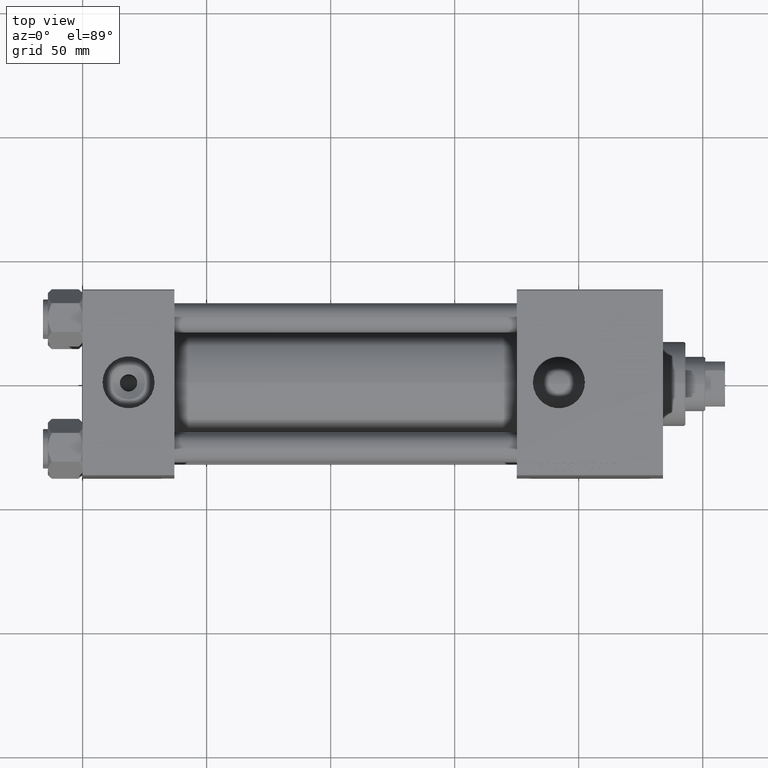
[diagram: clean part render]
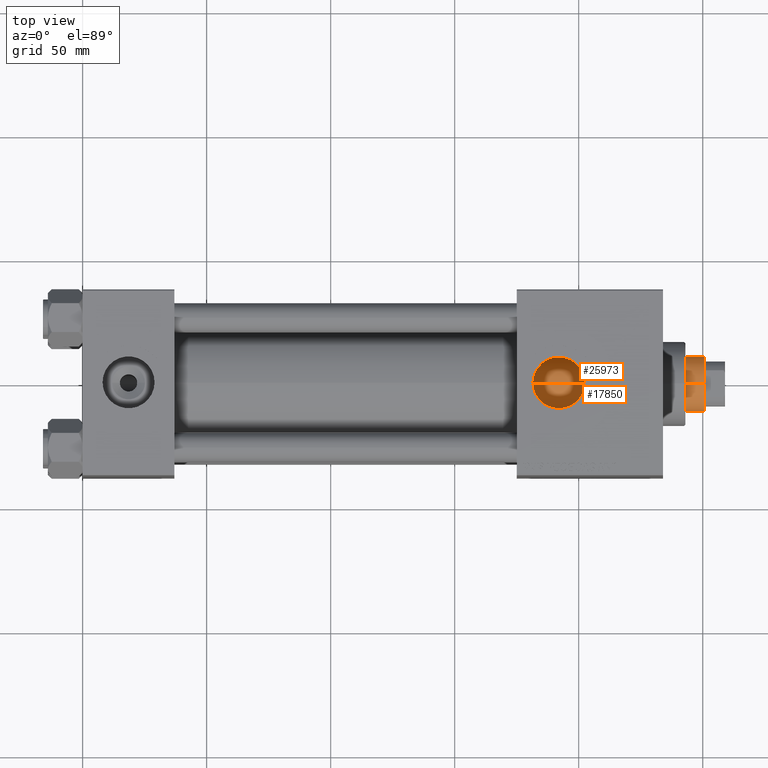
[diagram: same view with one multi-face feature highlighted, each face labeled with its STEP entity id]
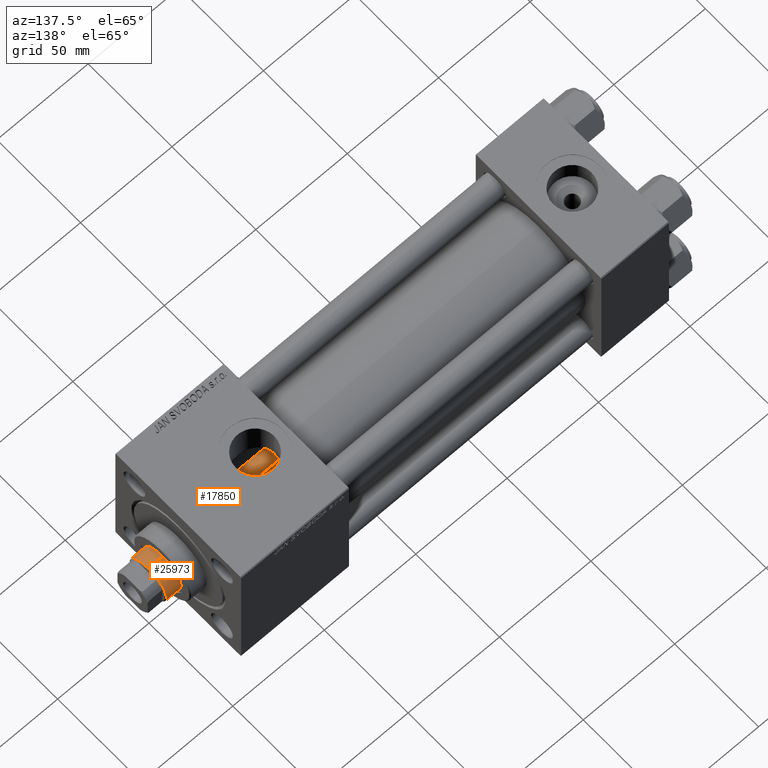
[diagram: same view with one multi-face feature highlighted, each face labeled with its STEP entity id]
A machine part, top view. The highlighted faces form ONE feature: a constant-radius fillet chain: 2 tangent blend faces with common blend radius 11 mm. The faces share edges in the B-rep.
A second angle (auxiliary view) of the same feature is appended — it is thin or edge-on in the first view.
Their STEP definitions:
[1] entity #25973 (Cylinder):
#1259 = EDGE_LOOP ( 'NONE', ( #2989, #18706, #50017, #37603 ) ) ;
#2932 = DIRECTION ( 'NONE',  ( -1.000000000000000000, 0.000000000000000000, 0.000000000000000000 ) ) ;
#2989 = ORIENTED_EDGE ( 'NONE', *, *, #39881, .F. ) ;
#4681 = DIRECTION ( 'NONE',  ( -0.000000000000000000, -0.000000000000000000, -1.000000000000000000 ) ) ;
#5983 = CIRCLE ( 'NONE', #40035, 11.00000000000000000 ) ;
#6081 = DIRECTION ( 'NONE',  ( -0.000000000000000000, -0.000000000000000000, -1.000000000000000000 ) ) ;
#6391 = AXIS2_PLACEMENT_3D ( 'NONE', #20448, #39996, #30671 ) ;
#6990 = DIRECTION ( 'NONE',  ( -0.000000000000000000, -0.000000000000000000, -1.000000000000000000 ) ) ;
#7796 = VECTOR ( 'NONE', #4681, 1000.000000000000000 ) ;
#10594 = CARTESIAN_POINT ( 'NONE',  ( 11.00000000000000000, 1.347111479062088405E-15, 38.00000000000000000 ) ) ;
#14615 = FACE_OUTER_BOUND ( 'NONE', #1259, .T. ) ;
#17978 = CARTESIAN_POINT ( 'NONE',  ( 11.00000000000000000, 1.347111479062088405E-15, 213.5000000000000000 ) ) ;
#18706 = ORIENTED_EDGE ( 'NONE', *, *, #33338, .T. ) ;
#19681 = VERTEX_POINT ( 'NONE', #49026 ) ;
#20448 = CARTESIAN_POINT ( 'NONE',  ( 0.000000000000000000, 0.000000000000000000, 38.00000000000000000 ) ) ;
#20676 = EDGE_CURVE ( 'NONE', #41712, #33630, #24218, .T. ) ;
#21552 = LINE ( 'NONE', #40856, #26435 ) ;
#23948 = LINE ( 'NONE', #47316, #7796 ) ;
#24218 = CIRCLE ( 'NONE', #6391, 11.00000000000000000 ) ;
#25827 = VERTEX_POINT ( 'NONE', #17978 ) ;
#25973 = ADVANCED_FACE ( 'NONE', ( #14615 ), #49393, .T. ) ;
#26435 = VECTOR ( 'NONE', #6081, 1000.000000000000000 ) ;
#30671 = DIRECTION ( 'NONE',  ( 1.000000000000000000, 0.000000000000000000, 0.000000000000000000 ) ) ;
#33338 = EDGE_CURVE ( 'NONE', #25827, #19681, #5983, .T. ) ;
#33630 = VERTEX_POINT ( 'NONE', #10594 ) ;
#37603 = ORIENTED_EDGE ( 'NONE', *, *, #20676, .T. ) ;
#37811 = DIRECTION ( 'NONE',  ( 1.000000000000000000, 0.000000000000000000, 0.000000000000000000 ) ) ;
#39576 = EDGE_CURVE ( 'NONE', #19681, #41712, #23948, .T. ) ;
#39881 = EDGE_CURVE ( 'NONE', #25827, #33630, #21552, .T. ) ;
#39996 = DIRECTION ( 'NONE',  ( 0.000000000000000000, 0.000000000000000000, 1.000000000000000000 ) ) ;
#40035 = AXIS2_PLACEMENT_3D ( 'NONE', #49498, #42864, #37811 ) ;
#40856 = CARTESIAN_POINT ( 'NONE',  ( 11.00000000000000000, 1.347111479062088405E-15, 214.0000000000000000 ) ) ;
#41712 = VERTEX_POINT ( 'NONE', #44784 ) ;
#42008 = CARTESIAN_POINT ( 'NONE',  ( 0.000000000000000000, 0.000000000000000000, 214.0000000000000000 ) ) ;
#42864 = DIRECTION ( 'NONE',  ( 0.000000000000000000, 0.000000000000000000, -1.000000000000000000 ) ) ;
#44784 = CARTESIAN_POINT ( 'NONE',  ( -11.00000000000000000, 0.000000000000000000, 38.00000000000000000 ) ) ;
#46234 = AXIS2_PLACEMENT_3D ( 'NONE', #42008, #6990, #2932 ) ;
#47316 = CARTESIAN_POINT ( 'NONE',  ( -11.00000000000000000, 0.000000000000000000, 214.0000000000000000 ) ) ;
#49026 = CARTESIAN_POINT ( 'NONE',  ( -11.00000000000000000, 0.000000000000000000, 213.5000000000000000 ) ) ;
#49393 = CYLINDRICAL_SURFACE ( 'NONE', #46234, 11.00000000000000000 ) ;
#49498 = CARTESIAN_POINT ( 'NONE',  ( 0.000000000000000000, 0.000000000000000000, 213.5000000000000000 ) ) ;
#50017 = ORIENTED_EDGE ( 'NONE', *, *, #39576, .T. ) ;
[2] entity #17850 (Cylinder):
#1271 = ORIENTED_EDGE ( 'NONE', *, *, #39250, .T. ) ;
#4681 = DIRECTION ( 'NONE',  ( -0.000000000000000000, -0.000000000000000000, -1.000000000000000000 ) ) ;
#6081 = DIRECTION ( 'NONE',  ( -0.000000000000000000, -0.000000000000000000, -1.000000000000000000 ) ) ;
#7796 = VECTOR ( 'NONE', #4681, 1000.000000000000000 ) ;
#8546 = DIRECTION ( 'NONE',  ( 0.000000000000000000, 0.000000000000000000, -1.000000000000000000 ) ) ;
#10594 = CARTESIAN_POINT ( 'NONE',  ( 11.00000000000000000, 1.347111479062088405E-15, 38.00000000000000000 ) ) ;
#12663 = EDGE_LOOP ( 'NONE', ( #13104, #29401, #1271, #16645 ) ) ;
#13104 = ORIENTED_EDGE ( 'NONE', *, *, #48056, .T. ) ;
#15413 = DIRECTION ( 'NONE',  ( 0.000000000000000000, 0.000000000000000000, 1.000000000000000000 ) ) ;
#15647 = FACE_OUTER_BOUND ( 'NONE', #12663, .T. ) ;
#16645 = ORIENTED_EDGE ( 'NONE', *, *, #39576, .F. ) ;
#17797 = AXIS2_PLACEMENT_3D ( 'NONE', #41811, #31114, #46617 ) ;
#17850 = ADVANCED_FACE ( 'NONE', ( #15647 ), #34428, .T. ) ;
#17978 = CARTESIAN_POINT ( 'NONE',  ( 11.00000000000000000, 1.347111479062088405E-15, 213.5000000000000000 ) ) ;
#19681 = VERTEX_POINT ( 'NONE', #49026 ) ;
#21552 = LINE ( 'NONE', #40856, #26435 ) ;
#22462 = CIRCLE ( 'NONE', #41025, 11.00000000000000000 ) ;
#23948 = LINE ( 'NONE', #47316, #7796 ) ;
#24009 = DIRECTION ( 'NONE',  ( 1.000000000000000000, 0.000000000000000000, 0.000000000000000000 ) ) ;
#25827 = VERTEX_POINT ( 'NONE', #17978 ) ;
#26435 = VECTOR ( 'NONE', #6081, 1000.000000000000000 ) ;
#29401 = ORIENTED_EDGE ( 'NONE', *, *, #39881, .T. ) ;
#30883 = DIRECTION ( 'NONE',  ( 1.000000000000000000, 0.000000000000000000, 0.000000000000000000 ) ) ;
#31114 = DIRECTION ( 'NONE',  ( -0.000000000000000000, -0.000000000000000000, -1.000000000000000000 ) ) ;
#33630 = VERTEX_POINT ( 'NONE', #10594 ) ;
#34428 = CYLINDRICAL_SURFACE ( 'NONE', #17797, 11.00000000000000000 ) ;
#34773 = AXIS2_PLACEMENT_3D ( 'NONE', #42823, #8546, #24009 ) ;
#34809 = CIRCLE ( 'NONE', #34773, 11.00000000000000000 ) ;
#39250 = EDGE_CURVE ( 'NONE', #33630, #41712, #22462, .T. ) ;
#39576 = EDGE_CURVE ( 'NONE', #19681, #41712, #23948, .T. ) ;
#39881 = EDGE_CURVE ( 'NONE', #25827, #33630, #21552, .T. ) ;
#40856 = CARTESIAN_POINT ( 'NONE',  ( 11.00000000000000000, 1.347111479062088405E-15, 214.0000000000000000 ) ) ;
#41025 = AXIS2_PLACEMENT_3D ( 'NONE', #49939, #15413, #30883 ) ;
#41712 = VERTEX_POINT ( 'NONE', #44784 ) ;
#41811 = CARTESIAN_POINT ( 'NONE',  ( 0.000000000000000000, 0.000000000000000000, 214.0000000000000000 ) ) ;
#42823 = CARTESIAN_POINT ( 'NONE',  ( 0.000000000000000000, 0.000000000000000000, 213.5000000000000000 ) ) ;
#44784 = CARTESIAN_POINT ( 'NONE',  ( -11.00000000000000000, 0.000000000000000000, 38.00000000000000000 ) ) ;
#46617 = DIRECTION ( 'NONE',  ( -1.000000000000000000, 0.000000000000000000, 0.000000000000000000 ) ) ;
#47316 = CARTESIAN_POINT ( 'NONE',  ( -11.00000000000000000, 0.000000000000000000, 214.0000000000000000 ) ) ;
#48056 = EDGE_CURVE ( 'NONE', #19681, #25827, #34809, .T. ) ;
#49026 = CARTESIAN_POINT ( 'NONE',  ( -11.00000000000000000, 0.000000000000000000, 213.5000000000000000 ) ) ;
#49939 = CARTESIAN_POINT ( 'NONE',  ( 0.000000000000000000, 0.000000000000000000, 38.00000000000000000 ) ) ;